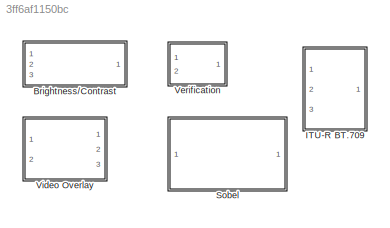
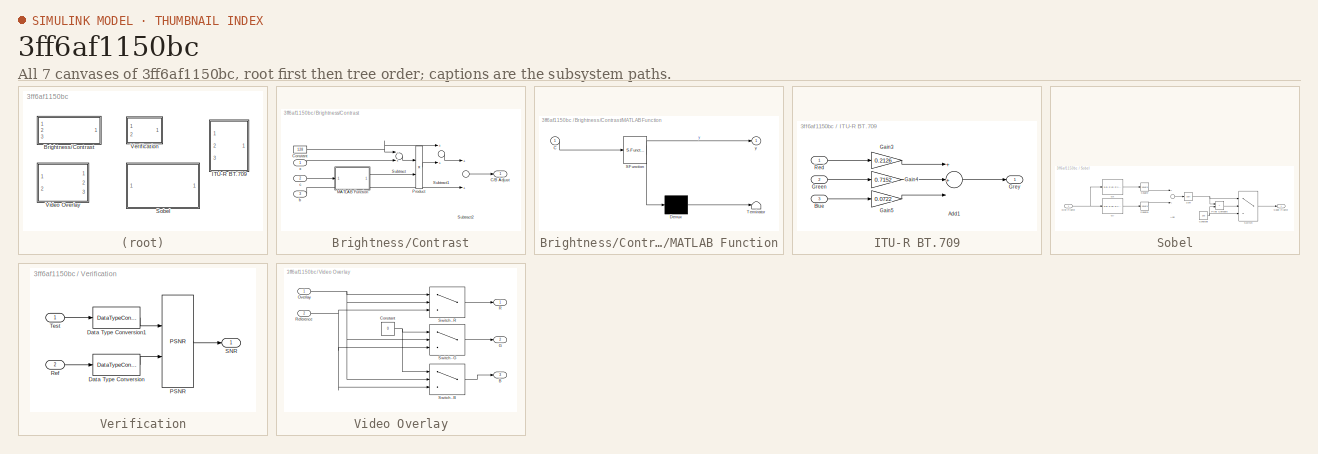
[diagram: thumbnail index - all 7 canvases of the model, root first then tree order]
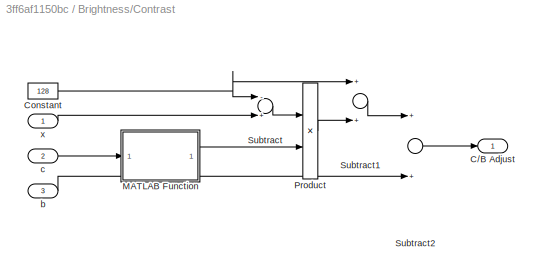
MODEL slx_3ff6af1150bc
KIND library
CONFIG AbsTol = auto
CONFIG EnableMultiTasking = off
CONFIG FixedStep = auto
CONFIG MaxStep = auto
CONFIG MinStep = auto
CONFIG RelTol = 1e-3
CONFIG SampleTimeConstraint = Unconstrained
CONFIG Solver = VariableStepAuto
CONFIG SolverName = VariableStepAuto
CONFIG StartTime = 0.0
CONFIG StopTime = 10.0
BLOCK [SubSystem] Brightness//Contrast
  Ports = [3, 1]
  RequestExecContextInheritance = off
BLOCK [Outport] Brightness//Contrast/C//B Adjust
  IconDisplay = Port number
BLOCK [Constant] Brightness//Contrast/Constant
  SampleTime = -1
  Value = 128
BLOCK [SubSystem] Brightness//Contrast/MATLAB Function
  Commented = through
  ErrorFcn = Stateflow.Translate.translate
  PermitHierarchicalResolution = ExplicitOnly
  Ports = [1, 1]
  RequestExecContextInheritance = off
  SFBlockType = MATLAB Function
  TreatAsAtomicUnit = on
BLOCK [Demux] Brightness//Contrast/MATLAB Function/ Demux 
  Outputs = 1
  Ports = [1, 1]
BLOCK [S-Function] Brightness//Contrast/MATLAB Function/ SFunction 
  EnableBusSupport = off
  FunctionName = sf_sfun
  PortCounts = [1 2]
  Ports = [1, 2]
  SFcnIsStateOwnerBlock = off
  SFunctionDeploymentMode = off
  Tag = Stateflow S-Function library 2
BLOCK [Terminator] Brightness//Contrast/MATLAB Function/ Terminator 
BLOCK [Inport] Brightness//Contrast/MATLAB Function/C
  IconDisplay = Port number
BLOCK [Outport] Brightness//Contrast/MATLAB Function/y
  IconDisplay = Port number
BLOCK [Product] Brightness//Contrast/Product
  InputSameDT = off
  OutDataTypeStr = Inherit: Inherit via internal rule
  Ports = [2, 1]
  RndMeth = Floor
  SaturateOnIntegerOverflow = off
BLOCK [Sum] Brightness//Contrast/Subtract
  InputSameDT = off
  Inputs = -+
  OutDataTypeStr = Inherit: Inherit via internal rule
  Ports = [2, 1]
  SaturateOnIntegerOverflow = off
BLOCK [Sum] Brightness//Contrast/Subtract1
  InputSameDT = off
  OutDataTypeStr = Inherit: Inherit via internal rule
  Ports = [2, 1]
  SaturateOnIntegerOverflow = off
BLOCK [Sum] Brightness//Contrast/Subtract2
  InputSameDT = off
  OutDataTypeStr = Inherit: Inherit via internal rule
  Ports = [2, 1]
  SaturateOnIntegerOverflow = off
BLOCK [Inport] Brightness//Contrast/b
  IconDisplay = Port number
  Port = 3
BLOCK [Inport] Brightness//Contrast/c
  IconDisplay = Port number
  Port = 2
BLOCK [Inport] Brightness//Contrast/x
  IconDisplay = Port number
BLOCK [SubSystem] ITU-R BT.709
  Ports = [3, 1]
  RequestExecContextInheritance = off
BLOCK [Sum] ITU-R BT.709/Add1
  InputSameDT = off
  Inputs = 3
  OutDataTypeStr = Inherit: Inherit via internal rule
  Ports = [3, 1]
  SaturateOnIntegerOverflow = off
BLOCK [Inport] ITU-R BT.709/Blue
  IconDisplay = Port number
  Port = 3
BLOCK [Gain] ITU-R BT.709/Gain3
  Gain = 0.2126
  OutDataTypeStr = Inherit: Inherit via internal rule
  ParamDataTypeStr = Inherit: Inherit via internal rule
  SaturateOnIntegerOverflow = off
BLOCK [Gain] ITU-R BT.709/Gain4
  Gain = 0.7152
  OutDataTypeStr = Inherit: Inherit via internal rule
  ParamDataTypeStr = Inherit: Inherit via internal rule
  SaturateOnIntegerOverflow = off
BLOCK [Gain] ITU-R BT.709/Gain5
  Gain = 0.0722
  OutDataTypeStr = Inherit: Inherit via internal rule
  ParamDataTypeStr = Inherit: Inherit via internal rule
  SaturateOnIntegerOverflow = off
BLOCK [Inport] ITU-R BT.709/Green
  IconDisplay = Port number
  Port = 2
BLOCK [Outport] ITU-R BT.709/Grey
  IconDisplay = Port number
BLOCK [Inport] ITU-R BT.709/Red
  IconDisplay = Port number
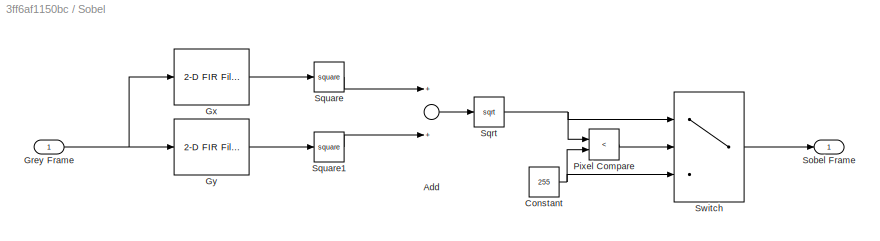
BLOCK [SubSystem] Sobel
  Ports = [1, 1]
  RequestExecContextInheritance = off
BLOCK [Sum] Sobel/Add
  InputSameDT = off
  OutDataTypeStr = Inherit: Inherit via internal rule
  Ports = [2, 1]
  SaturateOnIntegerOverflow = off
BLOCK [Constant] Sobel/Constant
  Value = 255
BLOCK [Inport] Sobel/Grey Frame
  IconDisplay = Port number
BLOCK [Reference] Sobel/Gx  REF=visionfilter/2-D FIR Filter
  Ports = [1, 1]
  SourceBlock = visionfilter/2-D FIR Filter
  SourceProductBaseCode = VP
  SourceProductName = Computer Vision System Toolbox
  SourceType = 2-D FIR Filter
BLOCK [Reference] Sobel/Gy  REF=visionfilter/2-D FIR Filter
  Ports = [1, 1]
  SourceBlock = visionfilter/2-D FIR Filter
  SourceProductBaseCode = VP
  SourceProductName = Computer Vision System Toolbox
  SourceType = 2-D FIR Filter
BLOCK [RelationalOperator] Sobel/Pixel Compare
  InputSameDT = off
  Operator = <
  OutDataTypeStr = boolean
  Ports = [2, 1]
  RndMeth = Simplest
BLOCK [Outport] Sobel/Sobel Frame
  IconDisplay = Port number
BLOCK [Sqrt] Sobel/Sqrt
  IntermediateResultsDataTypeStr = double
BLOCK [Math] Sobel/Square
  Operator = square
  Ports = [1, 1]
  RndMeth = Zero
BLOCK [Math] Sobel/Square1
  Operator = square
  Ports = [1, 1]
  RndMeth = Zero
BLOCK [Switch] Sobel/Switch
  Criteria = u2 ~= 0
  InputSameDT = off
  SaturateOnIntegerOverflow = off
  Threshold = 255
BLOCK [SubSystem] Verification
  Ports = [2, 1]
  RequestExecContextInheritance = off
BLOCK [DataTypeConversion] Verification/Data Type Conversion
  OutDataTypeStr = double
  RndMeth = Floor
  SaturateOnIntegerOverflow = off
BLOCK [DataTypeConversion] Verification/Data Type Conversion1
  OutDataTypeStr = double
  RndMeth = Floor
  SaturateOnIntegerOverflow = off
BLOCK [Reference] Verification/PSNR  REF=visionstatistics/PSNR
  Ports = [2, 1]
  SourceBlock = visionstatistics/PSNR
  SourceProductBaseCode = VP
  SourceProductName = Computer Vision System Toolbox
  SourceType = PSNR
BLOCK [Inport] Verification/Ref
  IconDisplay = Port number
  Port = 2
BLOCK [Outport] Verification/SNR
  IconDisplay = Port number
BLOCK [Inport] Verification/Test
  IconDisplay = Port number
BLOCK [SubSystem] Video Overlay
  Ports = [2, 3]
  RequestExecContextInheritance = off
BLOCK [Outport] Video Overlay/B
  IconDisplay = Port number
  Port = 3
BLOCK [Constant] Video Overlay/Constant
  SampleTime = -1
  Value = 0
BLOCK [Outport] Video Overlay/G
  IconDisplay = Port number
  Port = 2
BLOCK [Inport] Video Overlay/Overlay
  IconDisplay = Port number
BLOCK [Outport] Video Overlay/R
  IconDisplay = Port number
BLOCK [Inport] Video Overlay/Reference
  IconDisplay = Port number
  Port = 2
BLOCK [Switch] Video Overlay/Switch - B
  InputSameDT = off
  SaturateOnIntegerOverflow = off
  Threshold = bChannelThreshold
BLOCK [Switch] Video Overlay/Switch - G
  InputSameDT = off
  SaturateOnIntegerOverflow = off
  Threshold = gChannelThreshold
BLOCK [Switch] Video Overlay/Switch - R
  InputSameDT = off
  SaturateOnIntegerOverflow = off
  Threshold = rChannelThreshold
NET Brightness//Contrast/Constant:1 -> Brightness//Contrast/Subtract1:1, Brightness//Contrast/Subtract:1
LINE Brightness//Contrast/MATLAB Function:1 -> Brightness//Contrast/Product:2
LINE Brightness//Contrast/Product:1 -> Brightness//Contrast/Subtract1:2
LINE Brightness//Contrast/Subtract1:1 -> Brightness//Contrast/Subtract2:1
LINE Brightness//Contrast/Subtract2:1 -> Brightness//Contrast/C//B Adjust:1
LINE Brightness//Contrast/Subtract:1 -> Brightness//Contrast/Product:1
LINE Brightness//Contrast/b:1 -> Brightness//Contrast/Subtract2:2
LINE Brightness//Contrast/c:1 -> Brightness//Contrast/MATLAB Function:1
LINE Brightness//Contrast/x:1 -> Brightness//Contrast/Subtract:2
LINE ITU-R BT.709/Add1:1 -> ITU-R BT.709/Grey:1
LINE ITU-R BT.709/Blue:1 -> ITU-R BT.709/Gain5:1
LINE ITU-R BT.709/Gain3:1 -> ITU-R BT.709/Add1:1
LINE ITU-R BT.709/Gain4:1 -> ITU-R BT.709/Add1:2
LINE ITU-R BT.709/Gain5:1 -> ITU-R BT.709/Add1:3
LINE ITU-R BT.709/Green:1 -> ITU-R BT.709/Gain4:1
LINE ITU-R BT.709/Red:1 -> ITU-R BT.709/Gain3:1
LINE Sobel/Add:1 -> Sobel/Sqrt:1
NET Sobel/Constant:1 -> Sobel/Pixel Compare:2, Sobel/Switch:3
NET Sobel/Grey Frame:1 -> Sobel/Gx:1, Sobel/Gy:1
LINE Sobel/Gx:1 -> Sobel/Square:1
LINE Sobel/Gy:1 -> Sobel/Square1:1
LINE Sobel/Pixel Compare:1 -> Sobel/Switch:2
NET Sobel/Sqrt:1 -> Sobel/Pixel Compare:1, Sobel/Switch:1
LINE Sobel/Square1:1 -> Sobel/Add:2
LINE Sobel/Square:1 -> Sobel/Add:1
LINE Sobel/Switch:1 -> Sobel/Sobel Frame:1
LINE Verification/Data Type Conversion1:1 -> Verification/PSNR:1
LINE Verification/Data Type Conversion:1 -> Verification/PSNR:2
LINE Verification/PSNR:1 -> Verification/SNR:1
LINE Verification/Ref:1 -> Verification/Data Type Conversion:1
LINE Verification/Test:1 -> Verification/Data Type Conversion1:1
NET Video Overlay/Constant:1 -> Video Overlay/Switch - B:1, Video Overlay/Switch - G:1
NET Video Overlay/Overlay:1 -> Video Overlay/Switch - B:2, Video Overlay/Switch - G:2, Video Overlay/Switch - R:1, Video Overlay/Switch - R:2
NET Video Overlay/Reference:1 -> Video Overlay/Switch - B:3, Video Overlay/Switch - G:3, Video Overlay/Switch - R:3
LINE Video Overlay/Switch - B:1 -> Video Overlay/B:1
LINE Video Overlay/Switch - G:1 -> Video Overlay/G:1
LINE Video Overlay/Switch - R:1 -> Video Overlay/R:1
note: NET lines group one-source signal fan-out (src -> all destinations, sorted); 1:1 wires keep LINE
CHART Brightness//Contrast/MATLAB Function states=1 transitions=1
  STATE_LABEL 'eML_blk_kernel()'
  STATE_LABEL 'SCRIPT:\nfunction y = F(C)\ny=(259*(C+255))/(255*(259-C));'
